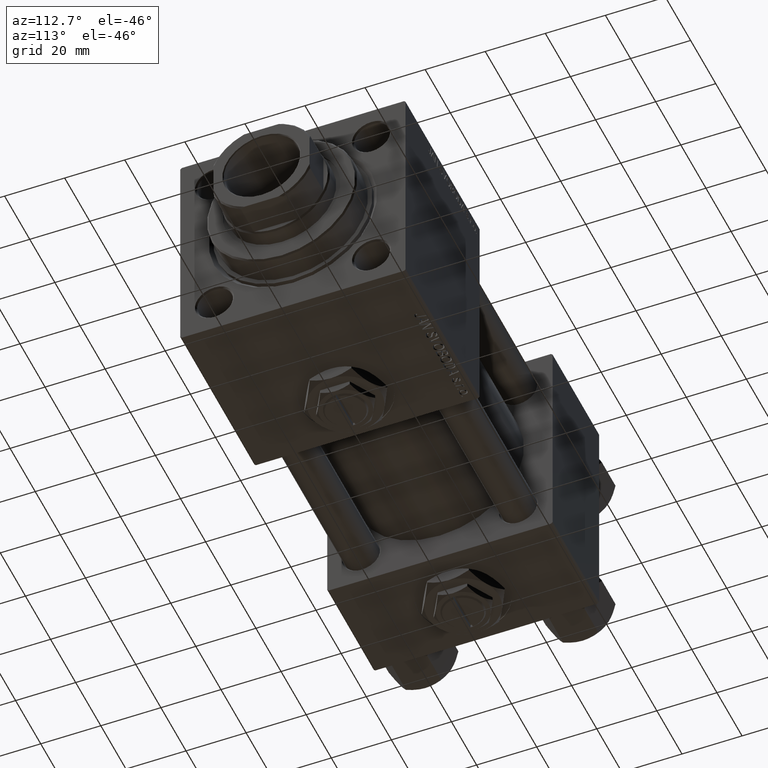
[diagram: clean part render]
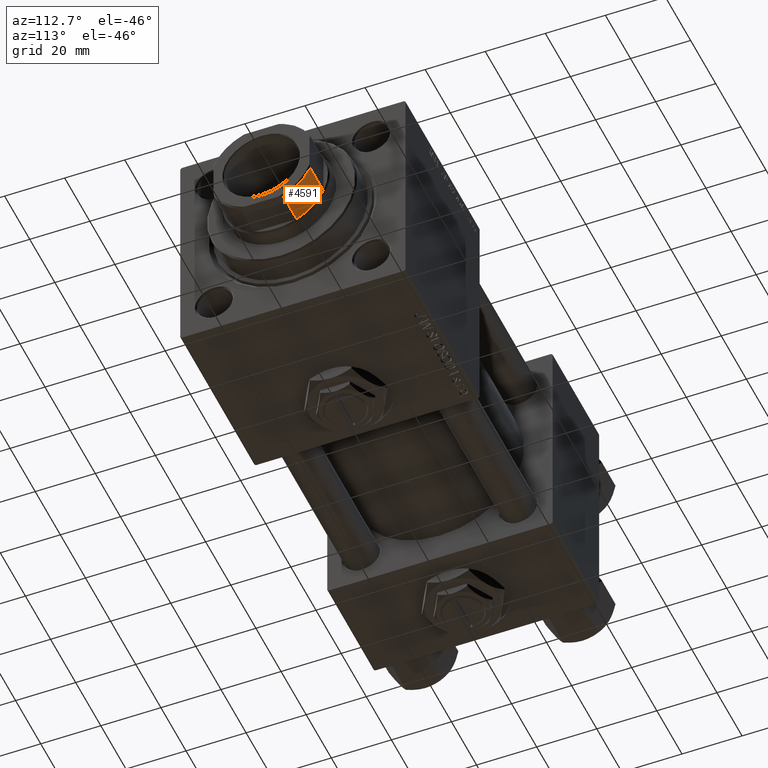
[diagram: same view with one face highlighted and labeled with its STEP entity id]
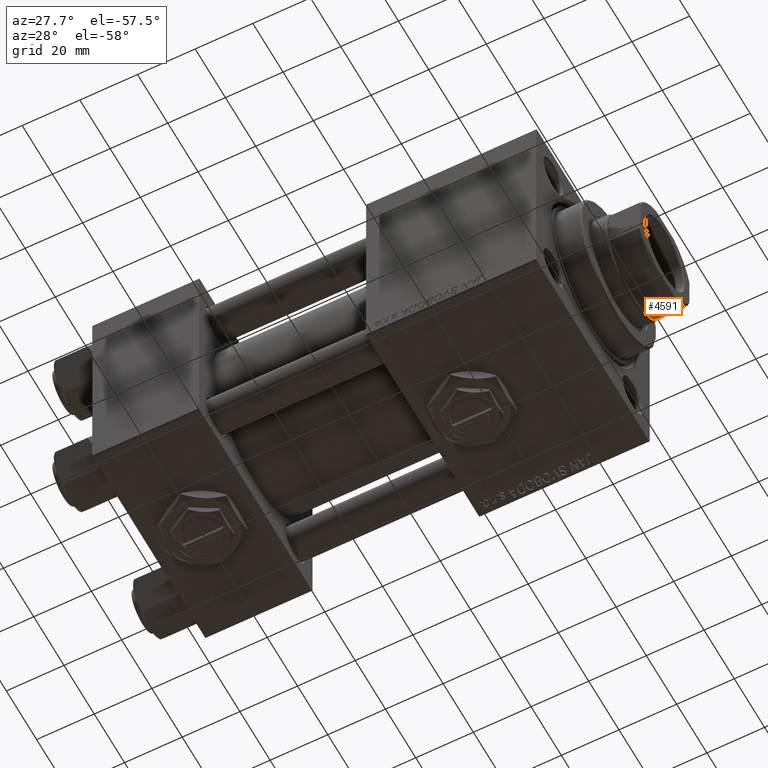
[diagram: same view with one face highlighted and labeled with its STEP entity id]
A machine part, auxiliary view. The second image highlights one B-rep face of the part: STEP entity #4591.
A second angle (auxiliary view) of the same face is appended — the face is thin or edge-on in the first view.
In plain terms, the highlighted cylindrical surface (partial cylindrical patch) has radius 17.5 mm, axis along (1, 0, -0).
Its self-contained STEP definition (entity closure, byte-faithful):
#375 = CARTESIAN_POINT ( 'NONE',  ( 0.000000000000000000, 0.000000000000000000, -0.001000000000001000089 ) ) ;
#556 = VECTOR ( 'NONE', #50108, 1000.000000000000000 ) ;
#769 = CARTESIAN_POINT ( 'NONE',  ( -7.088723439378915359, -16.00000000000000000, 141.5000000000000284 ) ) ;
#897 = DIRECTION ( 'NONE',  ( 1.000000000000000000, 0.000000000000000000, 0.000000000000000000 ) ) ;
#983 = DIRECTION ( 'NONE',  ( 0.000000000000000000, 0.000000000000000000, 1.000000000000000000 ) ) ;
#1251 = CIRCLE ( 'NONE', #41752, 17.50000000000000000 ) ;
#1700 = CIRCLE ( 'NONE', #31268, 17.50000000000003908 ) ;
#2747 = VERTEX_POINT ( 'NONE', #18827 ) ;
#4591 = ADVANCED_FACE ( 'NONE', ( #45004 ), #41049, .T. ) ;
#4858 = DIRECTION ( 'NONE',  ( -0.000000000000000000, -0.000000000000000000, 1.000000000000000000 ) ) ;
#7701 = VECTOR ( 'NONE', #23569, 1000.000000000000000 ) ;
#9522 = ORIENTED_EDGE ( 'NONE', *, *, #49815, .F. ) ;
#9754 = EDGE_CURVE ( 'NONE', #2747, #23282, #1700, .T. ) ;
#10335 = CARTESIAN_POINT ( 'NONE',  ( 0.000000000000000000, 0.000000000000000000, 141.5000000000000284 ) ) ;
#12362 = DIRECTION ( 'NONE',  ( 1.000000000000000000, 0.000000000000000000, 0.000000000000000000 ) ) ;
#12764 = CARTESIAN_POINT ( 'NONE',  ( -7.088723439378915359, -16.00000000000000000, 131.0000000000000284 ) ) ;
#13423 = LINE ( 'NONE', #34026, #556 ) ;
#14692 = EDGE_LOOP ( 'NONE', ( #40540, #51381, #9522, #35858 ) ) ;
#15333 = DIRECTION ( 'NONE',  ( 1.000000000000000000, 0.000000000000000000, 0.000000000000000000 ) ) ;
#18827 = CARTESIAN_POINT ( 'NONE',  ( -16.00000000000000711, -7.088723439378906477, 131.0000000000000284 ) ) ;
#20983 = EDGE_CURVE ( 'NONE', #51903, #33199, #1251, .T. ) ;
#22747 = DIRECTION ( 'NONE',  ( -0.000000000000000000, -0.000000000000000000, -1.000000000000000000 ) ) ;
#23282 = VERTEX_POINT ( 'NONE', #12764 ) ;
#23569 = DIRECTION ( 'NONE',  ( -0.000000000000000000, -0.000000000000000000, 1.000000000000000000 ) ) ;
#24095 = CARTESIAN_POINT ( 'NONE',  ( -16.00000000000000355, -7.088723439378904700, -0.001000000000001000089 ) ) ;
#28244 = CARTESIAN_POINT ( 'NONE',  ( 0.000000000000000000, 0.000000000000000000, 131.0000000000000000 ) ) ;
#31268 = AXIS2_PLACEMENT_3D ( 'NONE', #28244, #983, #12362 ) ;
#33199 = VERTEX_POINT ( 'NONE', #39672 ) ;
#34026 = CARTESIAN_POINT ( 'NONE',  ( -7.088723439378915359, -16.00000000000000000, -0.001000000000001000089 ) ) ;
#35773 = EDGE_CURVE ( 'NONE', #23282, #51903, #13423, .T. ) ;
#35858 = ORIENTED_EDGE ( 'NONE', *, *, #9754, .T. ) ;
#39672 = CARTESIAN_POINT ( 'NONE',  ( -16.00000000000000355, -7.088723439378904700, 141.5000000000000284 ) ) ;
#40540 = ORIENTED_EDGE ( 'NONE', *, *, #35773, .T. ) ;
#41049 = CYLINDRICAL_SURFACE ( 'NONE', #49750, 17.50000000000000000 ) ;
#41752 = AXIS2_PLACEMENT_3D ( 'NONE', #10335, #22747, #15333 ) ;
#44142 = LINE ( 'NONE', #24095, #7701 ) ;
#45004 = FACE_OUTER_BOUND ( 'NONE', #14692, .T. ) ;
#49750 = AXIS2_PLACEMENT_3D ( 'NONE', #375, #4858, #897 ) ;
#49815 = EDGE_CURVE ( 'NONE', #2747, #33199, #44142, .T. ) ;
#50108 = DIRECTION ( 'NONE',  ( -0.000000000000000000, -0.000000000000000000, 1.000000000000000000 ) ) ;
#51381 = ORIENTED_EDGE ( 'NONE', *, *, #20983, .T. ) ;
#51903 = VERTEX_POINT ( 'NONE', #769 ) ;